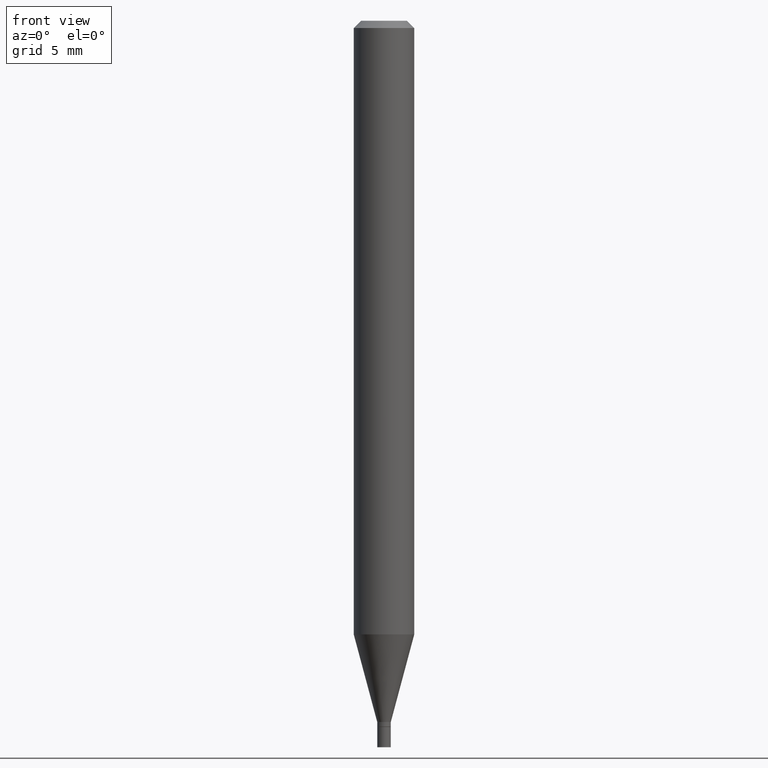
[diagram: clean part render]
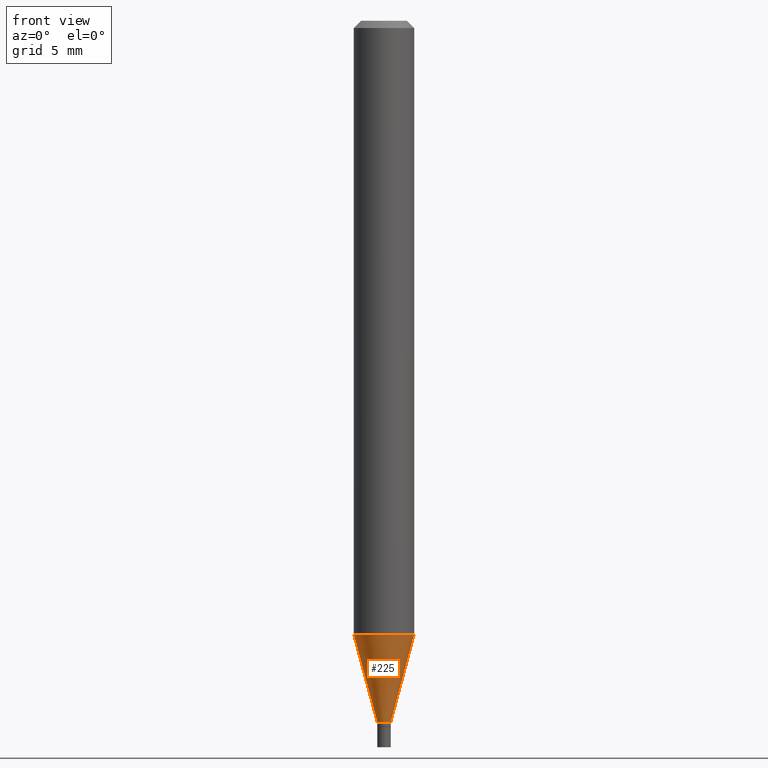
[diagram: same view with one face highlighted and labeled with its STEP entity id]
A machine part, front view. The second image highlights one B-rep face of the part: STEP entity #225.
In plain terms, the highlighted conical surface has half-angle 15 deg.
Its self-contained STEP definition (entity closure, byte-faithful):
#13 = ORIENTED_EDGE ( 'NONE', *, *, #349, .T. ) ;
#20 = CARTESIAN_POINT ( 'NONE',  ( 0.06249999999999999306, -4.860126437113567612E-15, -1.266995535832909692 ) ) ;
#22 = DIRECTION ( 'NONE',  ( 1.000000000000000000, -6.982962677686262766E-15, 0.000000000000000000 ) ) ;
#26 = AXIS2_PLACEMENT_3D ( 'NONE', #346, #280, #22 ) ;
#36 = EDGE_CURVE ( 'NONE', #87, #307, #390, .T. ) ;
#40 = CARTESIAN_POINT ( 'NONE',  ( 0.01399999999999992049, -5.153426456132482850E-15, -1.448000000000000176 ) ) ;
#56 = LINE ( 'NONE', #212, #446 ) ;
#75 = LINE ( 'NONE', #40, #424 ) ;
#80 = VERTEX_POINT ( 'NONE', #118 ) ;
#87 = VERTEX_POINT ( 'NONE', #437 ) ;
#92 = DIRECTION ( 'NONE',  ( -2.445468806185136597E-29, 3.491481338843145583E-15, 1.000000000000000000 ) ) ;
#98 = CARTESIAN_POINT ( 'NONE',  ( -0.01399999999999992049, -4.467895527773287748E-15, -1.448000000000000176 ) ) ;
#104 = DIRECTION ( 'NONE',  ( 1.000000000000000000, -6.982962677686233578E-15, 0.000000000000000000 ) ) ;
#118 = CARTESIAN_POINT ( 'NONE',  ( 0.01399999999999992049, -5.153426456132482850E-15, -1.448000000000000176 ) ) ;
#158 = VERTEX_POINT ( 'NONE', #98 ) ;
#162 = ORIENTED_EDGE ( 'NONE', *, *, #36, .F. ) ;
#166 = AXIS2_PLACEMENT_3D ( 'NONE', #409, #92, #461 ) ;
#181 = CARTESIAN_POINT ( 'NONE',  ( 3.541038831356078205E-29, -5.055664978644875495E-15, -1.448000000000000176 ) ) ;
#212 = CARTESIAN_POINT ( 'NONE',  ( -0.01399999999999992049, -4.956188995638462169E-15, -1.448000000000000176 ) ) ;
#213 = EDGE_LOOP ( 'NONE', ( #286, #237, #13, #162 ) ) ;
#225 = ADVANCED_FACE ( 'NONE', ( #386 ), #382, .T. ) ;
#237 = ORIENTED_EDGE ( 'NONE', *, *, #289, .T. ) ;
#280 = DIRECTION ( 'NONE',  ( -2.445468806185136597E-29, 3.491481338843145583E-15, 1.000000000000000000 ) ) ;
#281 = DIRECTION ( 'NONE',  ( -2.445468806185136597E-29, 3.491481338843145583E-15, 1.000000000000000000 ) ) ;
#286 = ORIENTED_EDGE ( 'NONE', *, *, #296, .F. ) ;
#289 = EDGE_CURVE ( 'NONE', #158, #80, #293, .T. ) ;
#293 = CIRCLE ( 'NONE', #299, 0.01399999999999992049 ) ;
#296 = EDGE_CURVE ( 'NONE', #158, #87, #56, .T. ) ;
#299 = AXIS2_PLACEMENT_3D ( 'NONE', #181, #281, #104 ) ;
#307 = VERTEX_POINT ( 'NONE', #20 ) ;
#317 = DIRECTION ( 'NONE',  ( -0.2588190451025211281, 5.211531920934547886E-15, 0.9659258262890679791 ) ) ;
#331 = DIRECTION ( 'NONE',  ( 0.2588190451025211281, 1.565188264969622954E-15, 0.9659258262890679791 ) ) ;
#346 = CARTESIAN_POINT ( 'NONE',  ( 3.098398060455203506E-29, -4.423691269758176732E-15, -1.266995535832909692 ) ) ;
#349 = EDGE_CURVE ( 'NONE', #80, #307, #75, .T. ) ;
#382 = CONICAL_SURFACE ( 'NONE', #166, 0.01399999999999992049, 0.2617993877991498519 ) ;
#386 = FACE_OUTER_BOUND ( 'NONE', #213, .T. ) ;
#390 = CIRCLE ( 'NONE', #26, 0.06250000000000000000 ) ;
#409 = CARTESIAN_POINT ( 'NONE',  ( 3.541038831356078205E-29, -5.055664978644875495E-15, -1.448000000000000176 ) ) ;
#424 = VECTOR ( 'NONE', #331, 39.37007874015748854 ) ;
#437 = CARTESIAN_POINT ( 'NONE',  ( -0.06249999999999999306, -3.979602059908114116E-15, -1.266995535832909692 ) ) ;
#446 = VECTOR ( 'NONE', #317, 39.37007874015748854 ) ;
#461 = DIRECTION ( 'NONE',  ( 1.000000000000000000, -6.982962677686233578E-15, 0.000000000000000000 ) ) ;